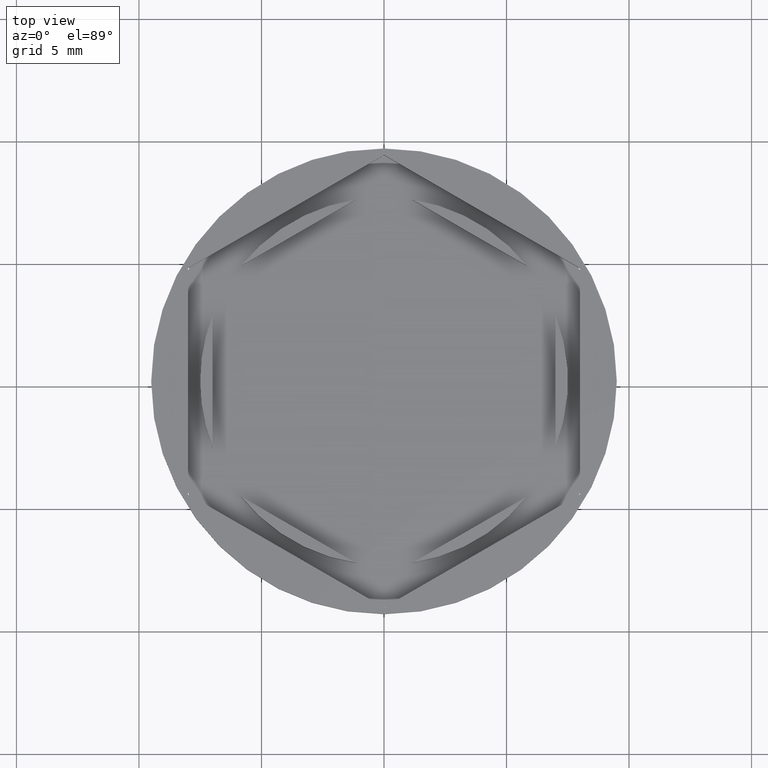
[diagram: clean part render]
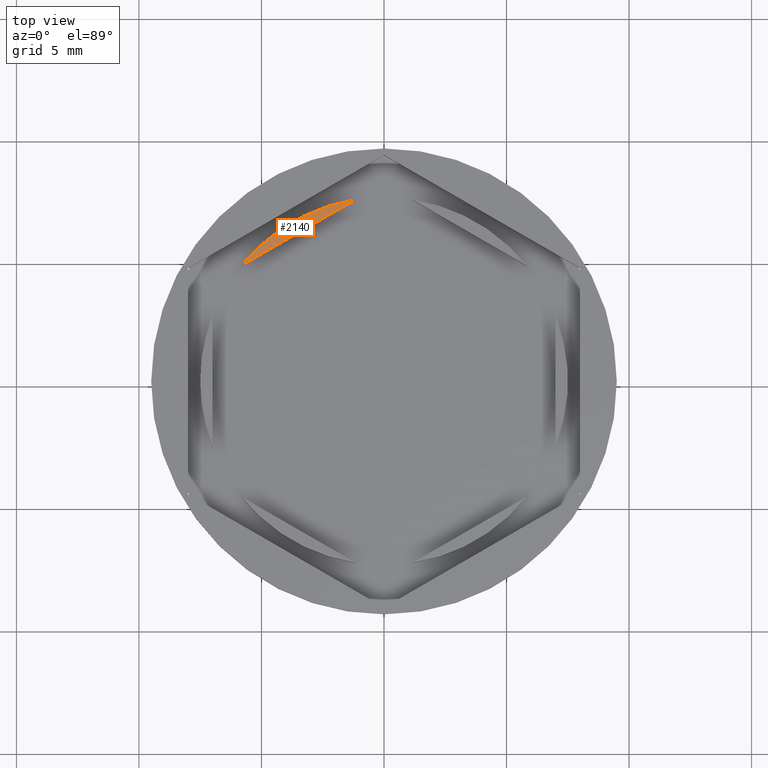
[diagram: same view with one face highlighted and labeled with its STEP entity id]
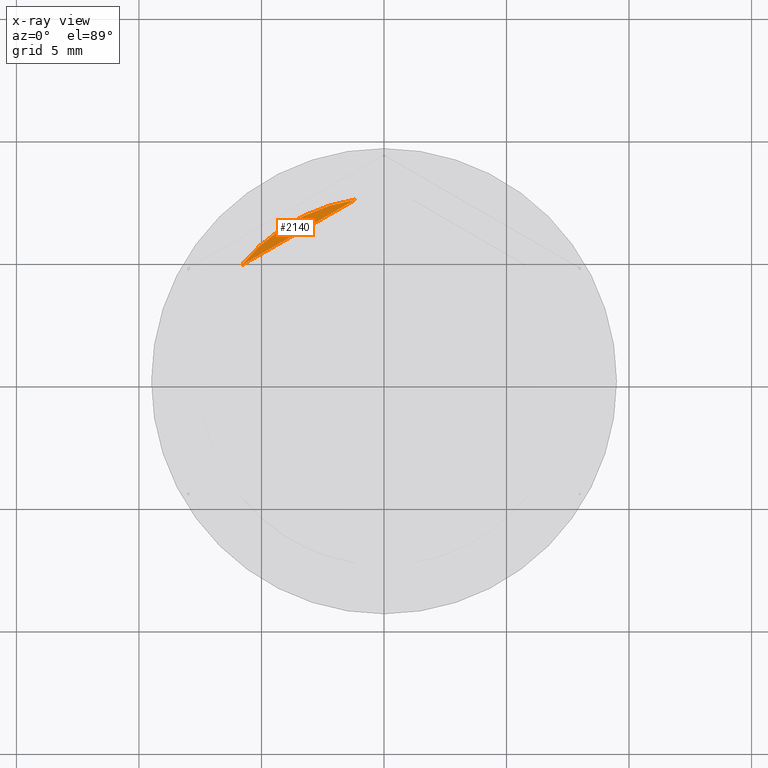
[diagram: x-ray of the same camera — body ghosted, the highlighted face saturated]
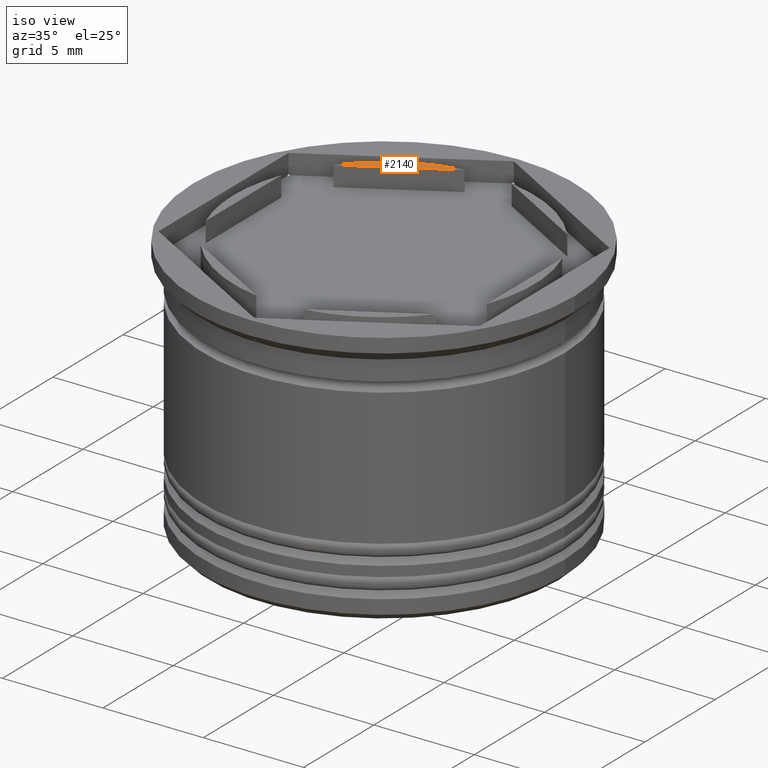
[diagram: same view with one face highlighted and labeled with its STEP entity id]
A machine part, top view. The second image highlights one B-rep face of the part: STEP entity #2140.
The next image is the same camera in x-ray: the body ghosted, the highlighted face saturated — about 0% of this face is hidden behind the body in this view.
A second angle (iso view) of the same face is appended — the face is thin or edge-on in the first view.
In plain terms, the highlighted planar face has unit normal (0, -0, 1).
Its self-contained STEP definition (entity closure, byte-faithful):
#15 = AXIS2_PLACEMENT_3D ( 'NONE', #1316, #1645, #1488 ) ;
#48 = CARTESIAN_POINT ( 'NONE',  ( -1.168155236727798973, 7.408469028274697443, 0.000000000000000000 ) ) ;
#125 = AXIS2_PLACEMENT_3D ( 'NONE', #1295, #794, #965 ) ;
#159 = CARTESIAN_POINT ( 'NONE',  ( -5.831844763272201249, 4.715886624707445129, 0.000000000000000000 ) ) ;
#315 = ORIENTED_EDGE ( 'NONE', *, *, #925, .T. ) ;
#370 = CIRCLE ( 'NONE', #15, 7.500000000000000000 ) ;
#577 = VERTEX_POINT ( 'NONE', #159 ) ;
#649 = EDGE_LOOP ( 'NONE', ( #1285, #315 ) ) ;
#654 = CARTESIAN_POINT ( 'NONE',  ( -3.499999999999999556, 6.062177826491069510, 0.000000000000000000 ) ) ;
#794 = DIRECTION ( 'NONE',  ( 0.000000000000000000, -0.000000000000000000, 1.000000000000000000 ) ) ;
#911 = EDGE_CURVE ( 'NONE', #1903, #577, #1635, .T. ) ;
#925 = EDGE_CURVE ( 'NONE', #1903, #577, #370, .T. ) ;
#965 = DIRECTION ( 'NONE',  ( 1.000000000000000000, 0.000000000000000000, 0.000000000000000000 ) ) ;
#1285 = ORIENTED_EDGE ( 'NONE', *, *, #911, .F. ) ;
#1295 = CARTESIAN_POINT ( 'NONE',  ( 0.000000000000000000, 0.000000000000000000, 0.000000000000000000 ) ) ;
#1316 = CARTESIAN_POINT ( 'NONE',  ( 0.000000000000000000, 0.000000000000000000, 0.000000000000000000 ) ) ;
#1419 = FACE_OUTER_BOUND ( 'NONE', #649, .T. ) ;
#1488 = DIRECTION ( 'NONE',  ( 1.000000000000000000, 0.000000000000000000, 0.000000000000000000 ) ) ;
#1628 = PLANE ( 'NONE',  #125 ) ;
#1635 = LINE ( 'NONE', #654, #1932 ) ;
#1645 = DIRECTION ( 'NONE',  ( -0.000000000000000000, -0.000000000000000000, 1.000000000000000000 ) ) ;
#1903 = VERTEX_POINT ( 'NONE', #48 ) ;
#1932 = VECTOR ( 'NONE', #2003, 999.9999999999998863 ) ;
#2003 = DIRECTION ( 'NONE',  ( -0.8660254037844387076, -0.5000000000000001110, -0.000000000000000000 ) ) ;
#2140 = ADVANCED_FACE ( 'NONE', ( #1419 ), #1628, .T. ) ;